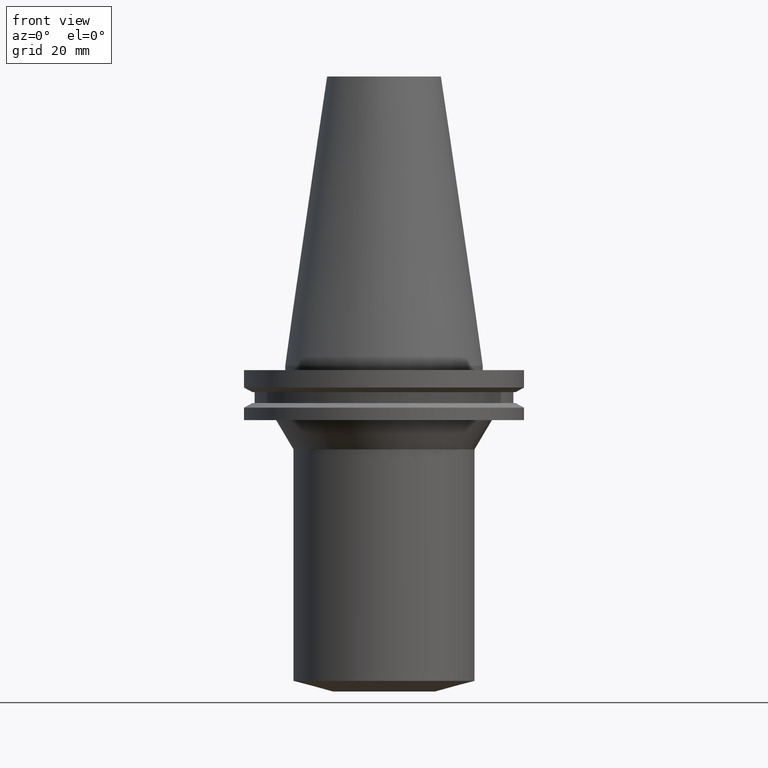
[diagram: clean part render]
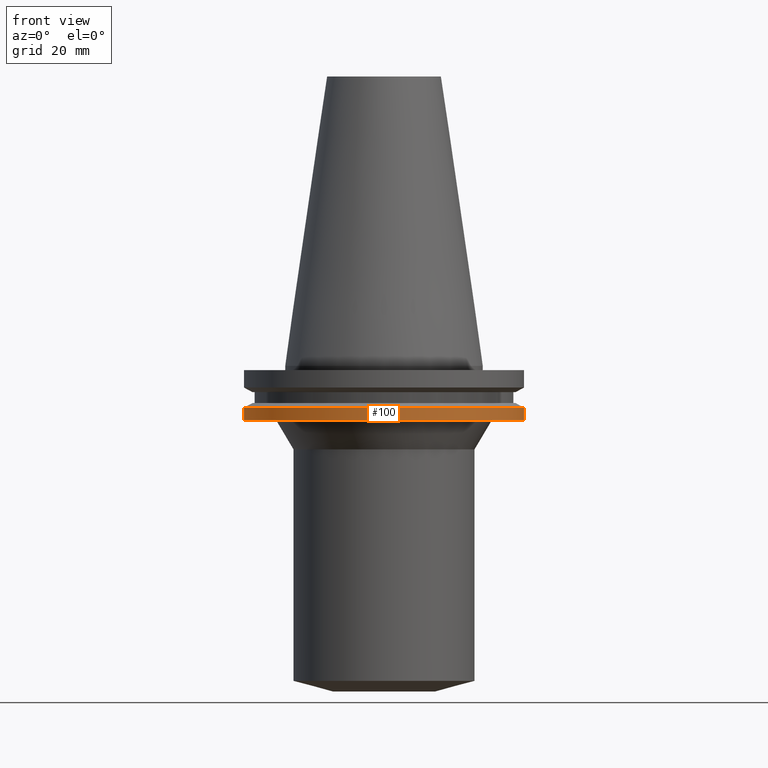
[diagram: same view with one face highlighted and labeled with its STEP entity id]
A machine part, front view. The second image highlights one B-rep face of the part: STEP entity #100.
In plain terms, the highlighted cylindrical surface (bore or boss wall) has radius 49.2125 mm, axis along (0, 0, -1).
Its self-contained STEP definition (entity closure, byte-faithful):
#80=EDGE_CURVE('Unnamed[1]',#191,#191,#192,.T.);
#100=ADVANCED_FACE('Unnamed[1]',(#221,#222),#223,.T.);
#112=EDGE_CURVE('Unnamed[1]',#241,#241,#242,.T.);
#191=VERTEX_POINT('',#334);
#192=CIRCLE('',#335,49.2125);
#221=FACE_BOUND('',#371,.T.);
#222=FACE_BOUND('',#372,.T.);
#223=CYLINDRICAL_SURFACE('',#373,49.2125);
#241=VERTEX_POINT('',#396);
#242=CIRCLE('',#397,49.2125);
#334=CARTESIAN_POINT('',(1.16647607618785E-015,49.2125,-19.05));
#335=AXIS2_PLACEMENT_3D('',#484,#485,#486);
#371=EDGE_LOOP('',(#519));
#372=EDGE_LOOP('',(#520));
#373=AXIS2_PLACEMENT_3D('',#521,#522,#523);
#396=CARTESIAN_POINT('',(8.96819062732941E-016,49.2125,-14.64616677));
#397=AXIS2_PLACEMENT_3D('',#542,#543,#544);
#484=CARTESIAN_POINT('',(1.16647607618785E-015,2.33295215237571E-015,-19.05));
#485=DIRECTION('',(6.12323399573677E-017,1.22464679914735E-016,-1.0));
#486=DIRECTION('',(-1.23259516440783E-032,1.0,1.22464679914735E-016));
#519=ORIENTED_EDGE('',*,*,#80,.F.);
#520=ORIENTED_EDGE('',*,*,#112,.T.);
#521=CARTESIAN_POINT('',(1.0316475694604E-015,2.0632951389208E-015,-16.848083385));
#522=DIRECTION('',(6.12323399573677E-017,1.22464679914735E-016,-1.0));
#523=DIRECTION('',(-1.23259516440783E-032,1.0,1.22464679914735E-016));
#542=CARTESIAN_POINT('',(8.96819062732942E-016,1.79363812546588E-015,-14.64616677));
#543=DIRECTION('',(6.12323399573677E-017,1.22464679914735E-016,-1.0));
#544=DIRECTION('',(-1.23259516440783E-032,1.0,1.22464679914735E-016));